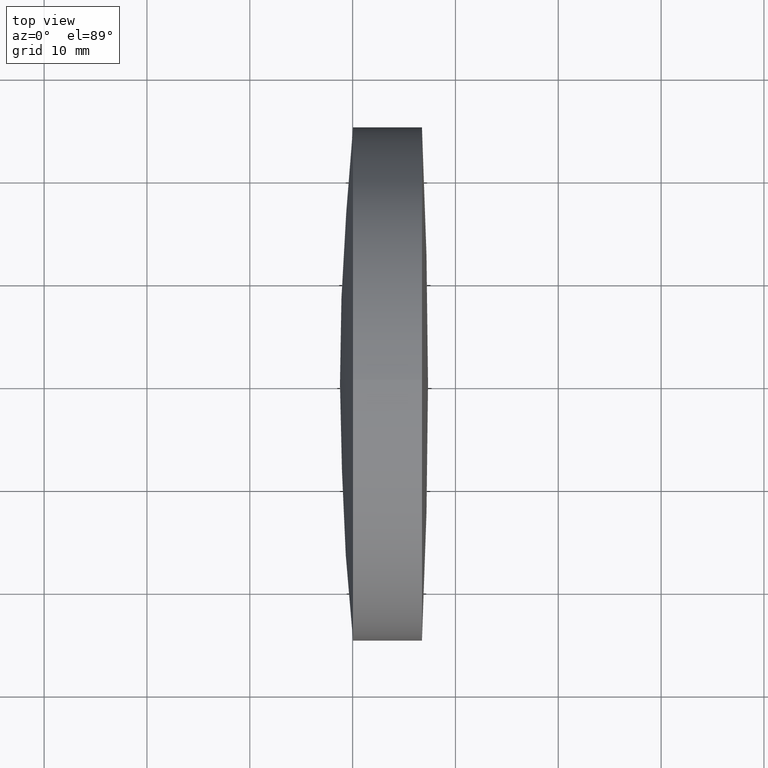
[diagram: clean part render]
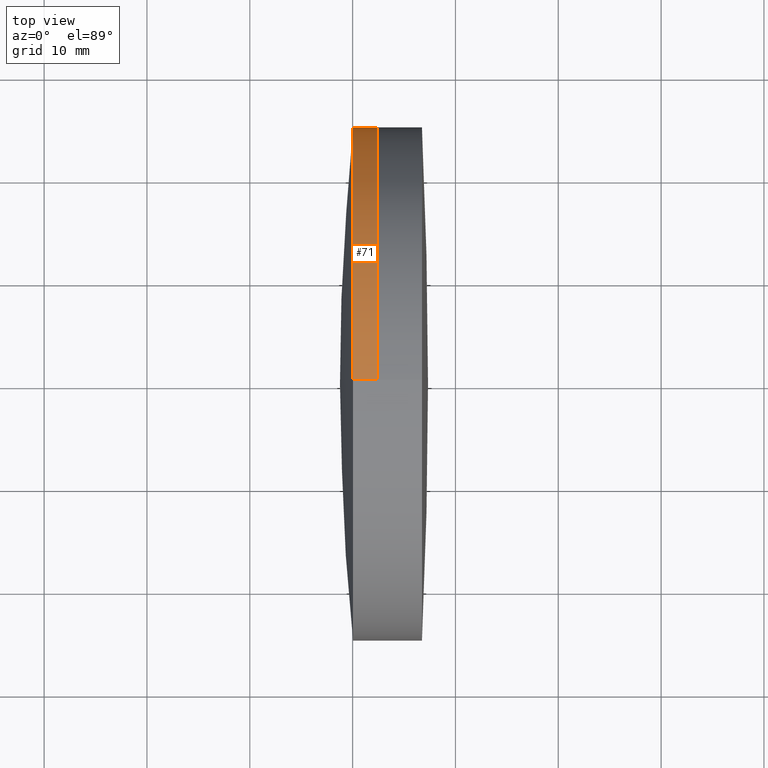
[diagram: same view with one face highlighted and labeled with its STEP entity id]
A machine part, top view. The second image highlights one B-rep face of the part: STEP entity #71.
In plain terms, the highlighted cylindrical surface (partial cylindrical patch) has radius 25 mm, axis along (-1, -0, -0).
Its self-contained STEP definition (entity closure, byte-faithful):
#15 = VERTEX_POINT ( 'NONE', #214 ) ;
#18 = EDGE_CURVE ( 'NONE', #15, #52, #146, .T. ) ;
#26 = DIRECTION ( 'NONE',  ( 0.0000000000000000000, 0.0000000000000000000, 1.000000000000000000 ) ) ;
#44 = DIRECTION ( 'NONE',  ( 0.0000000000000000000, 0.0000000000000000000, 1.000000000000000000 ) ) ;
#47 = CARTESIAN_POINT ( 'NONE',  ( 260.0409607472518000, 0.0000000000000000000, 0.0000000000000000000 ) ) ;
#52 = VERTEX_POINT ( 'NONE', #290 ) ;
#62 = VECTOR ( 'NONE', #157, 1000.000000000000000 ) ;
#67 = ORIENTED_EDGE ( 'NONE', *, *, #18, .F. ) ;
#71 = ADVANCED_FACE ( 'NONE', ( #91 ), #132, .T. ) ;
#78 = DIRECTION ( 'NONE',  ( -1.000000000000000000, -0.0000000000000000000, -0.0000000000000000000 ) ) ;
#91 = FACE_OUTER_BOUND ( 'NONE', #168, .T. ) ;
#97 = ORIENTED_EDGE ( 'NONE', *, *, #252, .F. ) ;
#101 = CIRCLE ( 'NONE', #110, 25.00000000000008500 ) ;
#109 = VECTOR ( 'NONE', #337, 1000.000000000000000 ) ;
#110 = AXIS2_PLACEMENT_3D ( 'NONE', #117, #78, #153 ) ;
#117 = CARTESIAN_POINT ( 'NONE',  ( 262.3933440983366300, 0.0000000000000000000, 0.0000000000000000000 ) ) ;
#132 = CYLINDRICAL_SURFACE ( 'NONE', #166, 25.00000000000008500 ) ;
#146 = CIRCLE ( 'NONE', #188, 25.00000000000008900 ) ;
#153 = DIRECTION ( 'NONE',  ( 0.0000000000000000000, 0.0000000000000000000, 1.000000000000000000 ) ) ;
#157 = DIRECTION ( 'NONE',  ( -1.000000000000000000, -0.0000000000000000000, -0.0000000000000000000 ) ) ;
#166 = AXIS2_PLACEMENT_3D ( 'NONE', #211, #271, #44 ) ;
#168 = EDGE_LOOP ( 'NONE', ( #316, #320, #67, #97 ) ) ;
#183 = LINE ( 'NONE', #299, #62 ) ;
#188 = AXIS2_PLACEMENT_3D ( 'NONE', #47, #239, #26 ) ;
#206 = VERTEX_POINT ( 'NONE', #292 ) ;
#211 = CARTESIAN_POINT ( 'NONE',  ( 124.5233095260452400, 0.0000000000000000000, 0.0000000000000000000 ) ) ;
#214 = CARTESIAN_POINT ( 'NONE',  ( 260.0409607472518000, 0.0000000000000000000, 25.00000000000009900 ) ) ;
#221 = CARTESIAN_POINT ( 'NONE',  ( 262.3933440983366300, 0.0000000000000000000, 25.00000000000008500 ) ) ;
#239 = DIRECTION ( 'NONE',  ( -1.000000000000000000, -0.0000000000000000000, -0.0000000000000000000 ) ) ;
#252 = EDGE_CURVE ( 'NONE', #326, #15, #183, .T. ) ;
#271 = DIRECTION ( 'NONE',  ( -1.000000000000000000, -0.0000000000000000000, -0.0000000000000000000 ) ) ;
#277 = LINE ( 'NONE', #301, #109 ) ;
#290 = CARTESIAN_POINT ( 'NONE',  ( 260.0409607472518000, 3.061616997868394900E-015, -25.00000000000028100 ) ) ;
#292 = CARTESIAN_POINT ( 'NONE',  ( 262.3933440983366300, 3.061616997868393700E-015, -25.00000000000008500 ) ) ;
#299 = CARTESIAN_POINT ( 'NONE',  ( 124.5233095260452400, 0.0000000000000000000, 25.00000000000008500 ) ) ;
#301 = CARTESIAN_POINT ( 'NONE',  ( 124.5233095260452400, 3.061616997868393700E-015, -25.00000000000008500 ) ) ;
#316 = ORIENTED_EDGE ( 'NONE', *, *, #335, .T. ) ;
#320 = ORIENTED_EDGE ( 'NONE', *, *, #333, .T. ) ;
#326 = VERTEX_POINT ( 'NONE', #221 ) ;
#333 = EDGE_CURVE ( 'NONE', #206, #52, #277, .T. ) ;
#335 = EDGE_CURVE ( 'NONE', #326, #206, #101, .T. ) ;
#337 = DIRECTION ( 'NONE',  ( -1.000000000000000000, -0.0000000000000000000, -0.0000000000000000000 ) ) ;